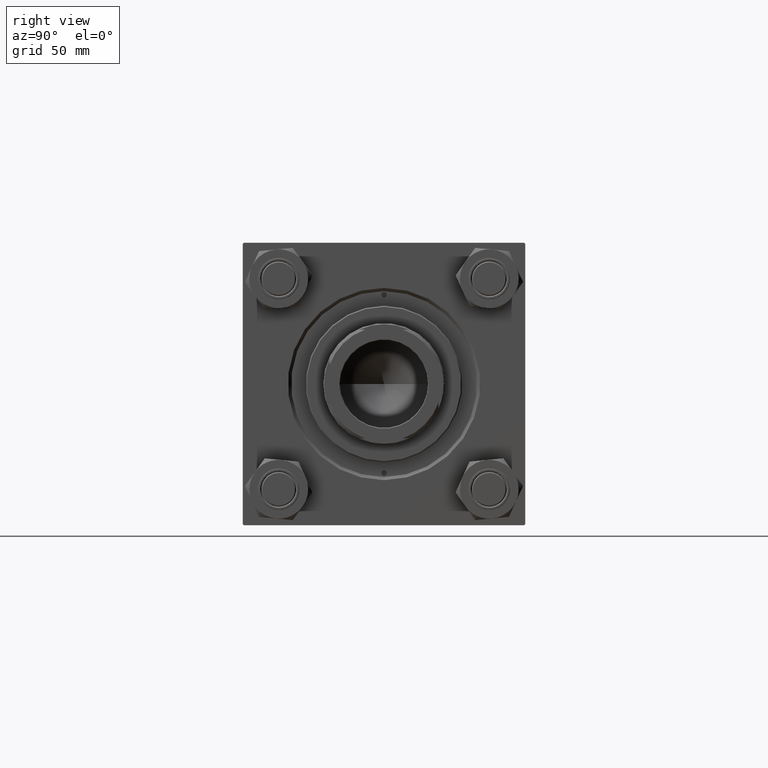
[diagram: clean part render]
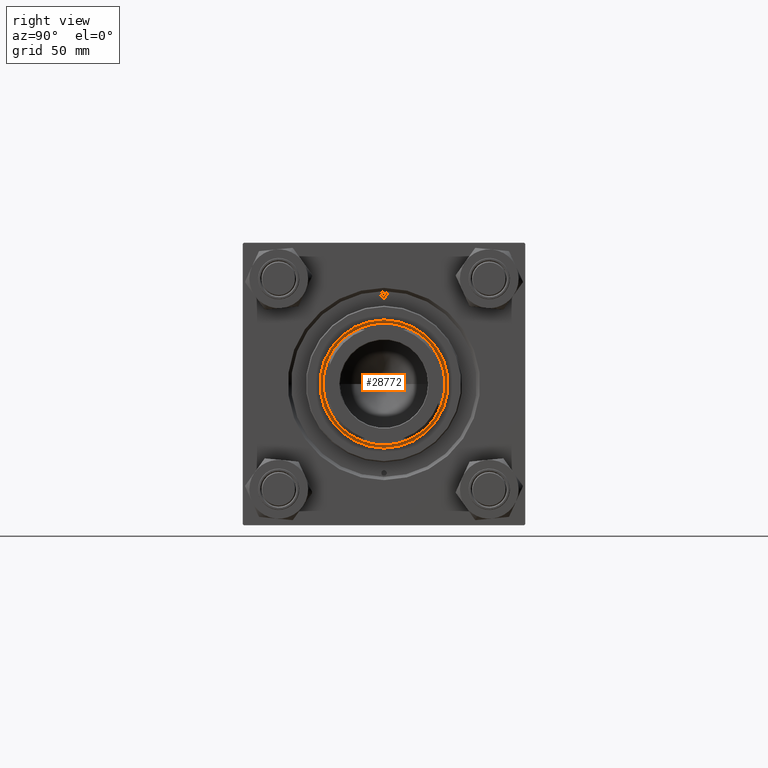
[diagram: same view with one face highlighted and labeled with its STEP entity id]
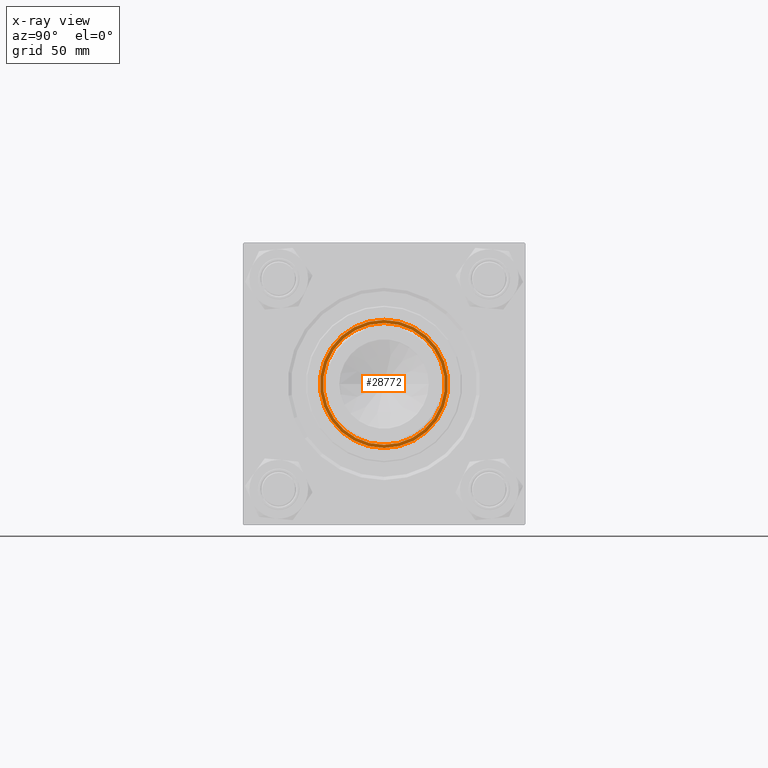
[diagram: x-ray of the same camera — body ghosted, the highlighted face saturated]
A machine part, right view. The second image highlights one B-rep face of the part: STEP entity #28772.
The next image is the same camera in x-ray: the body ghosted, the highlighted face saturated — about 0% of this face is hidden behind the body in this view.
In plain terms, the highlighted planar face has unit normal (1, 0, -0).
Its self-contained STEP definition (entity closure, byte-faithful):
#51 = ORIENTED_EDGE ( 'NONE', *, *, #14039, .T. ) ;
#831 = VERTEX_POINT ( 'NONE', #2450 ) ;
#2276 = CARTESIAN_POINT ( 'NONE',  ( -28.00000000000000000, 3.429011037612589276E-15, 38.19999999999999574 ) ) ;
#2450 = CARTESIAN_POINT ( 'NONE',  ( -29.50000000000000355, 3.612708057484692393E-15, 38.19999999999999574 ) ) ;
#2683 = AXIS2_PLACEMENT_3D ( 'NONE', #49472, #14441, #43557 ) ;
#3011 = AXIS2_PLACEMENT_3D ( 'NONE', #21563, #17739, #9810 ) ;
#5138 = FACE_BOUND ( 'NONE', #12876, .T. ) ;
#6110 = ORIENTED_EDGE ( 'NONE', *, *, #39027, .T. ) ;
#7202 = ORIENTED_EDGE ( 'NONE', *, *, #30833, .T. ) ;
#8574 = DIRECTION ( 'NONE',  ( 1.000000000000000000, 0.000000000000000000, 0.000000000000000000 ) ) ;
#9094 = AXIS2_PLACEMENT_3D ( 'NONE', #43593, #40520, #8574 ) ;
#9810 = DIRECTION ( 'NONE',  ( 1.000000000000000000, 0.000000000000000000, 0.000000000000000000 ) ) ;
#12876 = EDGE_LOOP ( 'NONE', ( #51, #6110 ) ) ;
#14039 = EDGE_CURVE ( 'NONE', #31421, #36300, #22987, .T. ) ;
#14441 = DIRECTION ( 'NONE',  ( 0.000000000000000000, 0.000000000000000000, 1.000000000000000000 ) ) ;
#15237 = DIRECTION ( 'NONE',  ( -0.000000000000000000, -0.000000000000000000, -1.000000000000000000 ) ) ;
#16896 = CARTESIAN_POINT ( 'NONE',  ( 0.000000000000000000, 0.000000000000000000, 38.19999999999999574 ) ) ;
#17739 = DIRECTION ( 'NONE',  ( 0.000000000000000000, 0.000000000000000000, 1.000000000000000000 ) ) ;
#17892 = EDGE_CURVE ( 'NONE', #831, #41055, #21468, .T. ) ;
#20958 = CIRCLE ( 'NONE', #3011, 29.50000000000000355 ) ;
#21468 = CIRCLE ( 'NONE', #2683, 29.50000000000000355 ) ;
#21563 = CARTESIAN_POINT ( 'NONE',  ( 0.000000000000000000, 0.000000000000000000, 38.19999999999999574 ) ) ;
#21963 = CIRCLE ( 'NONE', #39094, 28.00000000000000000 ) ;
#22987 = CIRCLE ( 'NONE', #9094, 28.00000000000000000 ) ;
#24910 = CARTESIAN_POINT ( 'NONE',  ( 29.50000000000000355, 0.000000000000000000, 38.19999999999999574 ) ) ;
#25323 = PLANE ( 'NONE',  #33155 ) ;
#28660 = DIRECTION ( 'NONE',  ( 0.000000000000000000, 0.000000000000000000, 1.000000000000000000 ) ) ;
#28772 = ADVANCED_FACE ( 'NONE', ( #43988, #5138 ), #25323, .T. ) ;
#29601 = EDGE_LOOP ( 'NONE', ( #7202, #30437 ) ) ;
#30437 = ORIENTED_EDGE ( 'NONE', *, *, #17892, .T. ) ;
#30833 = EDGE_CURVE ( 'NONE', #41055, #831, #20958, .T. ) ;
#31421 = VERTEX_POINT ( 'NONE', #41961 ) ;
#33155 = AXIS2_PLACEMENT_3D ( 'NONE', #16896, #28660, #41163 ) ;
#34172 = DIRECTION ( 'NONE',  ( 1.000000000000000000, 0.000000000000000000, 0.000000000000000000 ) ) ;
#36300 = VERTEX_POINT ( 'NONE', #2276 ) ;
#38751 = CARTESIAN_POINT ( 'NONE',  ( 0.000000000000000000, 0.000000000000000000, 38.19999999999999574 ) ) ;
#39027 = EDGE_CURVE ( 'NONE', #36300, #31421, #21963, .T. ) ;
#39094 = AXIS2_PLACEMENT_3D ( 'NONE', #38751, #15237, #34172 ) ;
#40520 = DIRECTION ( 'NONE',  ( -0.000000000000000000, -0.000000000000000000, -1.000000000000000000 ) ) ;
#41055 = VERTEX_POINT ( 'NONE', #24910 ) ;
#41163 = DIRECTION ( 'NONE',  ( 1.000000000000000000, 0.000000000000000000, -0.000000000000000000 ) ) ;
#41961 = CARTESIAN_POINT ( 'NONE',  ( 28.00000000000000000, 0.000000000000000000, 38.19999999999999574 ) ) ;
#43557 = DIRECTION ( 'NONE',  ( 1.000000000000000000, 0.000000000000000000, 0.000000000000000000 ) ) ;
#43593 = CARTESIAN_POINT ( 'NONE',  ( 0.000000000000000000, 0.000000000000000000, 38.19999999999999574 ) ) ;
#43988 = FACE_OUTER_BOUND ( 'NONE', #29601, .T. ) ;
#49472 = CARTESIAN_POINT ( 'NONE',  ( 0.000000000000000000, 0.000000000000000000, 38.19999999999999574 ) ) ;